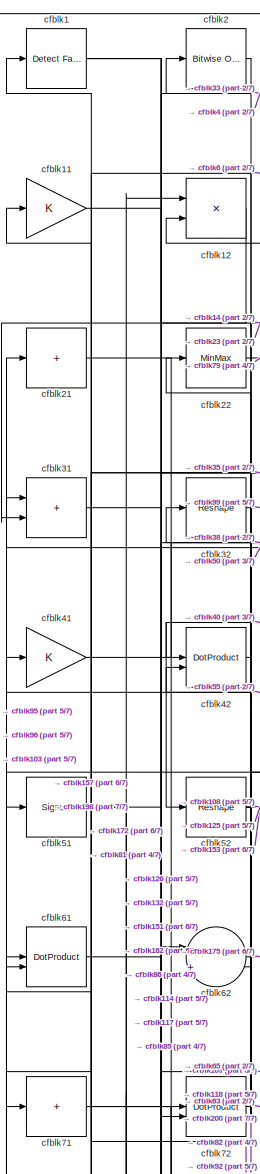
[diagram: root canvas - part 1/7, top left region]
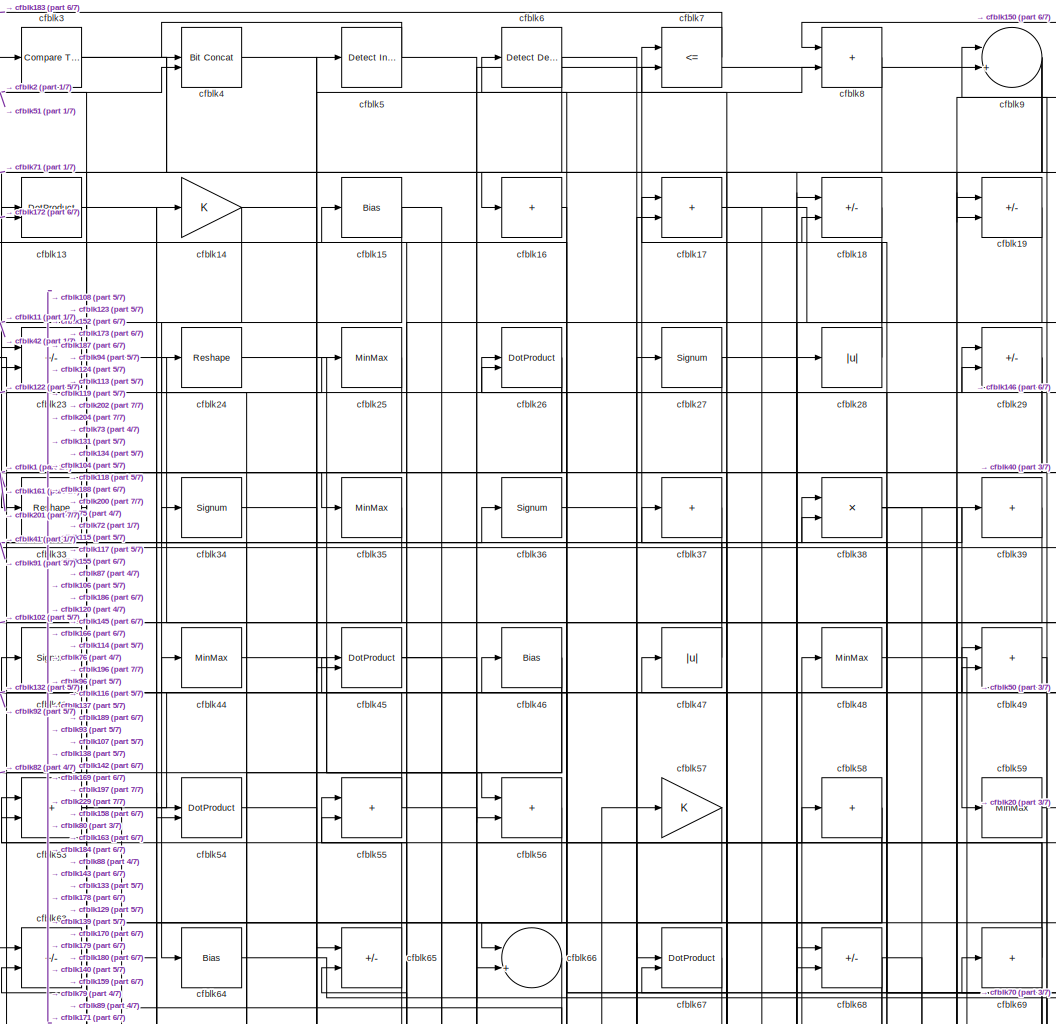
[diagram: root canvas - part 2/7, top center region]
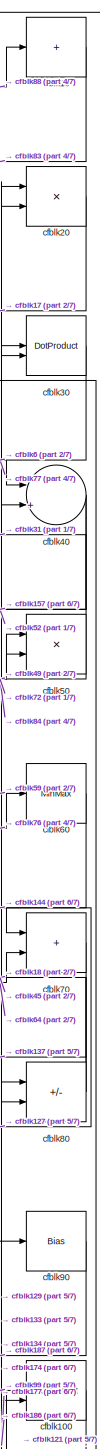
[diagram: root canvas - part 3/7, top right region]
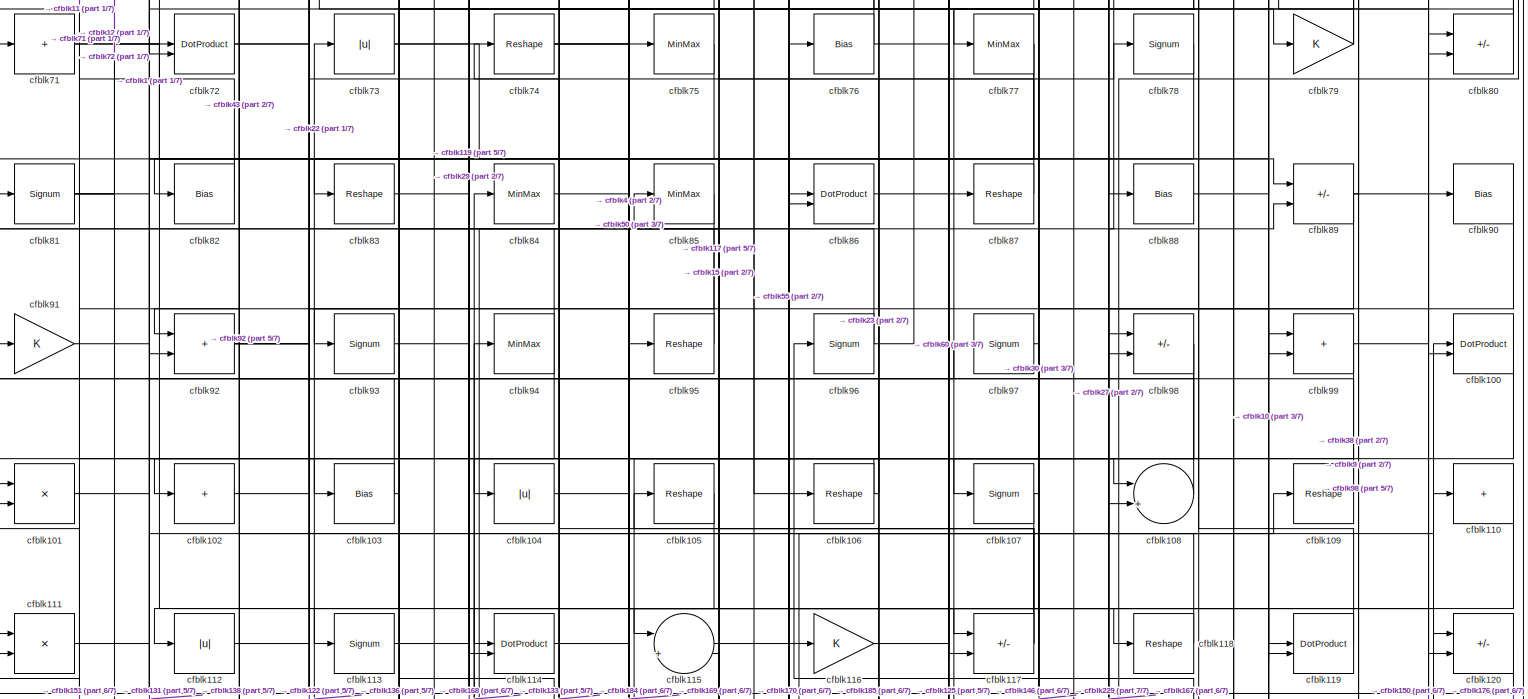
[diagram: root canvas - part 4/7, full width, middle band]
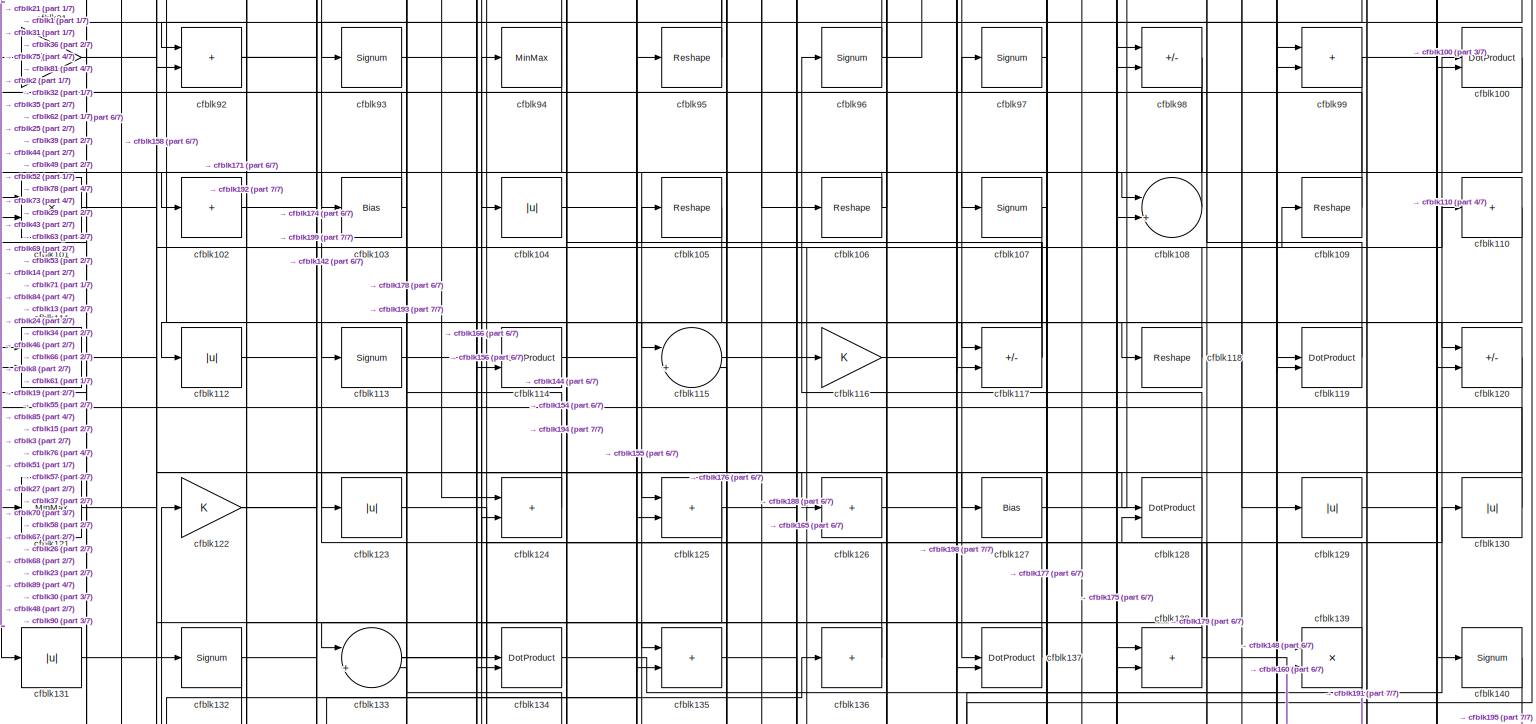
[diagram: root canvas - part 5/7, full width, middle band]
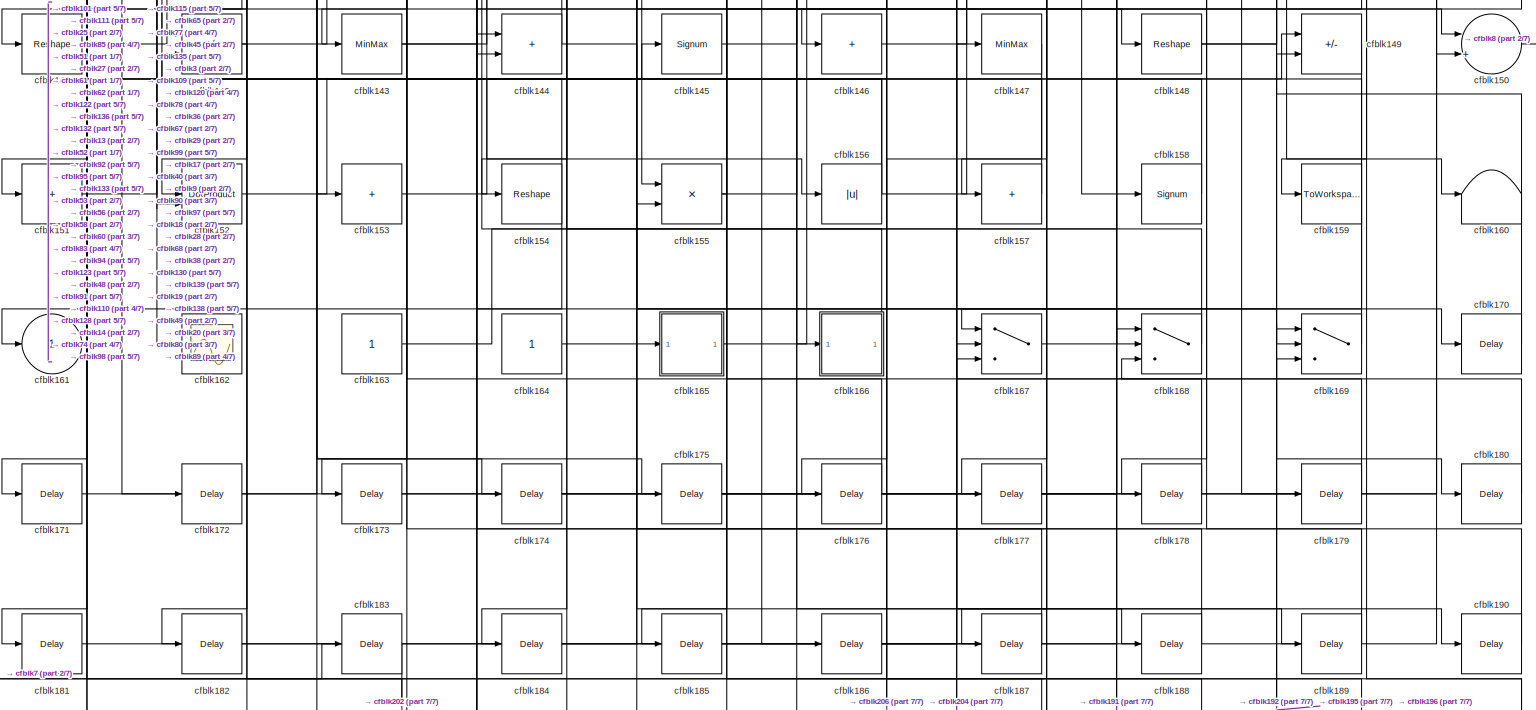
[diagram: root canvas - part 6/7, full width, bottom band]
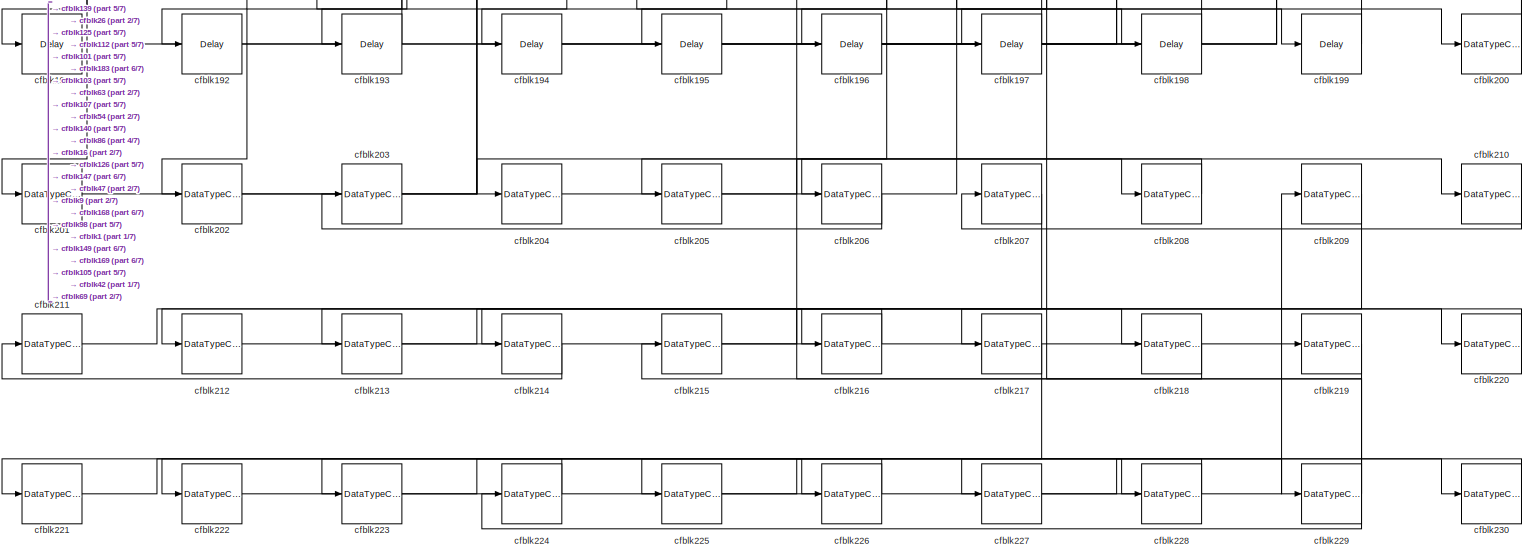
[diagram: root canvas - part 7/7, full width, bottom band]
MODEL slx_c27299323a4d
KIND model
CONFIG AbsTol = auto
CONFIG EnableMultiTasking = off
CONFIG FixedStep = auto
CONFIG MaxStep = auto
CONFIG MinStep = auto
CONFIG RelTol = 1e-3
CONFIG SampleTimeConstraint = Unconstrained
CONFIG SolverName = VariableStepAuto
CONFIG StartTime = 0.0
CONFIG StopTime = 10.0
BLOCK [Reference] cfblk1  REF=hdlsllib/Logic and Bit
Operations/Detect Fall
Negative
  SourceBlock = hdlsllib/Logic and Bit\nOperations/Detect Fall\nNegative
  SourceType = Detect Fall Negative
BLOCK [Sum] cfblk10
  IconShape = rectangular
  Inputs = +
BLOCK [DotProduct] cfblk100
  OutDataTypeStr = Inherit: Inherit via internal rule
BLOCK [Product] cfblk101
  Inputs = */
  RndMeth = Zero
  SaturateOnIntegerOverflow = on
BLOCK [Sum] cfblk102
  IconShape = rectangular
  Inputs = +
BLOCK [Bias] cfblk103
  Bias = 0.0
  SaturateOnIntegerOverflow = off
BLOCK [Abs] cfblk104
  SaturateOnIntegerOverflow = off
BLOCK [Reshape] cfblk105
BLOCK [Reshape] cfblk106
BLOCK [Signum] cfblk107
BLOCK [Sum] cfblk108
  Inputs = |++
BLOCK [Reshape] cfblk109
BLOCK [Gain] cfblk11
BLOCK [Sum] cfblk110
  IconShape = rectangular
  Inputs = +
BLOCK [Product] cfblk111
  Inputs = */
  RndMeth = Zero
  SaturateOnIntegerOverflow = on
BLOCK [Abs] cfblk112
  SaturateOnIntegerOverflow = off
BLOCK [Signum] cfblk113
BLOCK [DotProduct] cfblk114
  OutDataTypeStr = Inherit: Inherit via internal rule
BLOCK [Sum] cfblk115
  Inputs = |++
BLOCK [Gain] cfblk116
BLOCK [Sum] cfblk117
  IconShape = rectangular
  Inputs = +-
BLOCK [Reshape] cfblk118
BLOCK [DotProduct] cfblk119
  OutDataTypeStr = Inherit: Inherit via internal rule
BLOCK [Product] cfblk12
  Inputs = */
  RndMeth = Zero
  SaturateOnIntegerOverflow = on
BLOCK [Sum] cfblk120
  IconShape = rectangular
  Inputs = +-
BLOCK [MinMax] cfblk121
BLOCK [Gain] cfblk122
BLOCK [Abs] cfblk123
  SaturateOnIntegerOverflow = off
BLOCK [Sum] cfblk124
  IconShape = rectangular
BLOCK [Sum] cfblk125
  IconShape = rectangular
BLOCK [Sum] cfblk126
  IconShape = rectangular
  Inputs = +
BLOCK [Bias] cfblk127
  Bias = 0.0
  SaturateOnIntegerOverflow = off
BLOCK [DotProduct] cfblk128
  OutDataTypeStr = Inherit: Inherit via internal rule
BLOCK [Abs] cfblk129
  SaturateOnIntegerOverflow = off
BLOCK [DotProduct] cfblk13
  OutDataTypeStr = Inherit: Inherit via internal rule
BLOCK [Abs] cfblk130
  SaturateOnIntegerOverflow = off
BLOCK [Abs] cfblk131
  SaturateOnIntegerOverflow = off
BLOCK [Signum] cfblk132
BLOCK [Sum] cfblk133
  Inputs = |++
BLOCK [DotProduct] cfblk134
  OutDataTypeStr = Inherit: Inherit via internal rule
BLOCK [Sum] cfblk135
  IconShape = rectangular
BLOCK [Sum] cfblk136
  IconShape = rectangular
  Inputs = +
BLOCK [DotProduct] cfblk137
  OutDataTypeStr = Inherit: Inherit via internal rule
BLOCK [Sum] cfblk138
  IconShape = rectangular
BLOCK [Product] cfblk139
  Inputs = */
  RndMeth = Zero
  SaturateOnIntegerOverflow = on
BLOCK [Gain] cfblk14
BLOCK [Signum] cfblk140
BLOCK [Reshape] cfblk141
BLOCK [Sum] cfblk142
  IconShape = rectangular
  Inputs = +-
BLOCK [MinMax] cfblk143
BLOCK [Sum] cfblk144
  IconShape = rectangular
BLOCK [Signum] cfblk145
BLOCK [Sum] cfblk146
  IconShape = rectangular
  Inputs = +
BLOCK [MinMax] cfblk147
BLOCK [Reshape] cfblk148
BLOCK [Sum] cfblk149
  IconShape = rectangular
  Inputs = +-
BLOCK [Bias] cfblk15
  Bias = 0.0
  SaturateOnIntegerOverflow = off
BLOCK [Sum] cfblk150
  Inputs = |++
BLOCK [Sum] cfblk151
  IconShape = rectangular
  Inputs = +
BLOCK [DotProduct] cfblk152
  OutDataTypeStr = Inherit: Inherit via internal rule
BLOCK [Sum] cfblk153
  IconShape = rectangular
  Inputs = +
BLOCK [Reshape] cfblk154
BLOCK [Product] cfblk155
  Inputs = */
  RndMeth = Zero
  SaturateOnIntegerOverflow = on
BLOCK [Abs] cfblk156
  SaturateOnIntegerOverflow = off
BLOCK [Sum] cfblk157
  IconShape = rectangular
  Inputs = +
BLOCK [Signum] cfblk158
BLOCK [ToWorkspace] cfblk159
  MaxDataPoints = inf
  SampleTime = -1
  SaveFormat = Timeseries
  VariableName = simout
BLOCK [Sum] cfblk16
  IconShape = rectangular
  Inputs = +
BLOCK [Terminator] cfblk160
BLOCK [Outport] cfblk161
  VectorParamsAs1DForOutWhenUnconnected = off
BLOCK [Scope] cfblk162
  Floating = off
  NumInputPorts = 1
  ScopeSpecificationString = Simulink.scopes.TimeScopeBlockCfg('CurrentConfiguration', extmgr.ConfigurationSet(extmgr.Configuration('Core','General UI',true),extmgr.Configuration('Core','Source UI',true),extmgr.Configuration('Sources','WiredSimulink',true,'DataLoggingVariableName','ScopeData2','DataLoggingSaveFormat','Array','DataLoggingLimitDataPoints',true,'DataLoggingDecimation','1'),extmgr.Configuration('Visuals','Time Do...<+868ch>
BLOCK [Constant] cfblk163
  SampleTime = -1
BLOCK [Constant] cfblk164
  SampleTime = -1
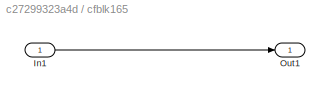
BLOCK [SubSystem] cfblk165
  LibrarySourceBlock = hdlsllib/Ports &\nSubsystems/Subsystem
BLOCK [Inport] cfblk165/In1
BLOCK [Outport] cfblk165/Out1
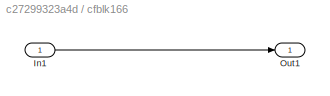
BLOCK [SubSystem] cfblk166
  LibrarySourceBlock = hdlsllib/Ports &\nSubsystems/Subsystem
BLOCK [Inport] cfblk166/In1
BLOCK [Outport] cfblk166/Out1
BLOCK [Switch] cfblk167
  InputSameDT = off
  SaturateOnIntegerOverflow = off
BLOCK [Switch] cfblk168
  InputSameDT = off
  SaturateOnIntegerOverflow = off
BLOCK [Switch] cfblk169
  InputSameDT = off
  SaturateOnIntegerOverflow = off
BLOCK [Sum] cfblk17
  IconShape = rectangular
BLOCK [Delay] cfblk170
  InputPortMap = u0
  SampleTime = 1
BLOCK [Delay] cfblk171
  InputPortMap = u0
  SampleTime = 1
BLOCK [Delay] cfblk172
  InputPortMap = u0
  SampleTime = 1
BLOCK [Delay] cfblk173
  InputPortMap = u0
  SampleTime = 1
BLOCK [Delay] cfblk174
  InputPortMap = u0
  SampleTime = 1
BLOCK [Delay] cfblk175
  InputPortMap = u0
  SampleTime = 1
BLOCK [Delay] cfblk176
  InputPortMap = u0
  SampleTime = 1
BLOCK [Delay] cfblk177
  InputPortMap = u0
  SampleTime = 1
BLOCK [Delay] cfblk178
  InputPortMap = u0
  SampleTime = 1
BLOCK [Delay] cfblk179
  InputPortMap = u0
  SampleTime = 1
BLOCK [Sum] cfblk18
  IconShape = rectangular
  Inputs = +-
BLOCK [Delay] cfblk180
  InputPortMap = u0
  SampleTime = 1
BLOCK [Delay] cfblk181
  InputPortMap = u0
  SampleTime = 1
BLOCK [Delay] cfblk182
  InputPortMap = u0
  SampleTime = 1
BLOCK [Delay] cfblk183
  InputPortMap = u0
  SampleTime = 1
BLOCK [Delay] cfblk184
  InputPortMap = u0
  SampleTime = 1
BLOCK [Delay] cfblk185
  InputPortMap = u0
  SampleTime = 1
BLOCK [Delay] cfblk186
  InputPortMap = u0
  SampleTime = 1
BLOCK [Delay] cfblk187
  InputPortMap = u0
  SampleTime = 1
BLOCK [Delay] cfblk188
  InputPortMap = u0
  SampleTime = 1
BLOCK [Delay] cfblk189
  InputPortMap = u0
  SampleTime = 1
BLOCK [Sum] cfblk19
  IconShape = rectangular
  Inputs = +-
BLOCK [Delay] cfblk190
  InputPortMap = u0
  SampleTime = 1
BLOCK [Delay] cfblk191
  InputPortMap = u0
  SampleTime = 1
BLOCK [Delay] cfblk192
  InputPortMap = u0
  SampleTime = 1
BLOCK [Delay] cfblk193
  InputPortMap = u0
  SampleTime = 1
BLOCK [Delay] cfblk194
  InputPortMap = u0
  SampleTime = 1
BLOCK [Delay] cfblk195
  InputPortMap = u0
  SampleTime = 1
BLOCK [Delay] cfblk196
  InputPortMap = u0
  SampleTime = 1
BLOCK [Delay] cfblk197
  InputPortMap = u0
  SampleTime = 1
BLOCK [Delay] cfblk198
  InputPortMap = u0
  SampleTime = 1
BLOCK [Delay] cfblk199
  InputPortMap = u0
  SampleTime = 1
BLOCK [Reference] cfblk2  REF=simulink/Logic and Bit
Operations/Bitwise
Operator
  LibrarySourceBlock = hdlsllib/Logic and Bit\nOperations/Bitwise\nOperator
  SourceBlock = simulink/Logic and Bit\nOperations/Bitwise\nOperator
  SourceType = Bitwise Operator
BLOCK [Product] cfblk20
  Inputs = */
  RndMeth = Zero
  SaturateOnIntegerOverflow = on
BLOCK [DataTypeConversion] cfblk200
  RndMeth = Floor
  SaturateOnIntegerOverflow = off
BLOCK [DataTypeConversion] cfblk201
  OutDataTypeStr = uint8
  RndMeth = Floor
  SaturateOnIntegerOverflow = off
BLOCK [DataTypeConversion] cfblk202
  OutDataTypeStr = uint8
  RndMeth = Floor
  SaturateOnIntegerOverflow = off
BLOCK [DataTypeConversion] cfblk203
  RndMeth = Floor
  SaturateOnIntegerOverflow = off
BLOCK [DataTypeConversion] cfblk204
  OutDataTypeStr = uint8
  RndMeth = Floor
  SaturateOnIntegerOverflow = off
BLOCK [DataTypeConversion] cfblk205
  RndMeth = Floor
  SaturateOnIntegerOverflow = off
BLOCK [DataTypeConversion] cfblk206
  OutDataTypeStr = uint8
  RndMeth = Floor
  SaturateOnIntegerOverflow = off
BLOCK [DataTypeConversion] cfblk207
  RndMeth = Floor
  SaturateOnIntegerOverflow = off
BLOCK [DataTypeConversion] cfblk208
  OutDataTypeStr = uint8
  RndMeth = Floor
  SaturateOnIntegerOverflow = off
BLOCK [DataTypeConversion] cfblk209
  RndMeth = Floor
  SaturateOnIntegerOverflow = off
BLOCK [Sum] cfblk21
  IconShape = rectangular
  Inputs = +
BLOCK [DataTypeConversion] cfblk210
  OutDataTypeStr = uint8
  RndMeth = Floor
  SaturateOnIntegerOverflow = off
BLOCK [DataTypeConversion] cfblk211
  RndMeth = Floor
  SaturateOnIntegerOverflow = off
BLOCK [DataTypeConversion] cfblk212
  OutDataTypeStr = uint8
  RndMeth = Floor
  SaturateOnIntegerOverflow = off
BLOCK [DataTypeConversion] cfblk213
  RndMeth = Floor
  SaturateOnIntegerOverflow = off
BLOCK [DataTypeConversion] cfblk214
  OutDataTypeStr = uint8
  RndMeth = Floor
  SaturateOnIntegerOverflow = off
BLOCK [DataTypeConversion] cfblk215
  RndMeth = Floor
  SaturateOnIntegerOverflow = off
BLOCK [DataTypeConversion] cfblk216
  OutDataTypeStr = uint8
  RndMeth = Floor
  SaturateOnIntegerOverflow = off
BLOCK [DataTypeConversion] cfblk217
  RndMeth = Floor
  SaturateOnIntegerOverflow = off
BLOCK [DataTypeConversion] cfblk218
  OutDataTypeStr = uint8
  RndMeth = Floor
  SaturateOnIntegerOverflow = off
BLOCK [DataTypeConversion] cfblk219
  RndMeth = Floor
  SaturateOnIntegerOverflow = off
BLOCK [MinMax] cfblk22
BLOCK [DataTypeConversion] cfblk220
  OutDataTypeStr = uint8
  RndMeth = Floor
  SaturateOnIntegerOverflow = off
BLOCK [DataTypeConversion] cfblk221
  RndMeth = Floor
  SaturateOnIntegerOverflow = off
BLOCK [DataTypeConversion] cfblk222
  OutDataTypeStr = uint8
  RndMeth = Floor
  SaturateOnIntegerOverflow = off
BLOCK [DataTypeConversion] cfblk223
  RndMeth = Floor
  SaturateOnIntegerOverflow = off
BLOCK [DataTypeConversion] cfblk224
  OutDataTypeStr = uint8
  RndMeth = Floor
  SaturateOnIntegerOverflow = off
BLOCK [DataTypeConversion] cfblk225
  RndMeth = Floor
  SaturateOnIntegerOverflow = off
BLOCK [DataTypeConversion] cfblk226
  OutDataTypeStr = uint8
  RndMeth = Floor
  SaturateOnIntegerOverflow = off
BLOCK [DataTypeConversion] cfblk227
  RndMeth = Floor
  SaturateOnIntegerOverflow = off
BLOCK [DataTypeConversion] cfblk228
  OutDataTypeStr = uint8
  RndMeth = Floor
  SaturateOnIntegerOverflow = off
BLOCK [DataTypeConversion] cfblk229
  RndMeth = Floor
  SaturateOnIntegerOverflow = off
BLOCK [Sum] cfblk23
  IconShape = rectangular
  Inputs = +-
BLOCK [DataTypeConversion] cfblk230
  OutDataTypeStr = uint8
  RndMeth = Floor
  SaturateOnIntegerOverflow = off
BLOCK [Reshape] cfblk24
BLOCK [MinMax] cfblk25
BLOCK [DotProduct] cfblk26
  OutDataTypeStr = Inherit: Inherit via internal rule
BLOCK [Signum] cfblk27
BLOCK [Abs] cfblk28
  SaturateOnIntegerOverflow = off
BLOCK [Sum] cfblk29
  IconShape = rectangular
  Inputs = +-
BLOCK [Reference] cfblk3  REF=hdlsllib/Logic and Bit
Operations/Compare
To Zero
  SourceBlock = hdlsllib/Logic and Bit\nOperations/Compare\nTo Zero
  SourceType = Compare To Zero
BLOCK [DotProduct] cfblk30
  OutDataTypeStr = Inherit: Inherit via internal rule
BLOCK [Sum] cfblk31
  IconShape = rectangular
BLOCK [Reshape] cfblk32
BLOCK [Reshape] cfblk33
BLOCK [Signum] cfblk34
BLOCK [MinMax] cfblk35
BLOCK [Signum] cfblk36
BLOCK [Sum] cfblk37
  IconShape = rectangular
  Inputs = +
BLOCK [Product] cfblk38
  Inputs = */
  RndMeth = Zero
  SaturateOnIntegerOverflow = on
BLOCK [Sum] cfblk39
  IconShape = rectangular
  Inputs = +
BLOCK [Reference] cfblk4  REF=hdlsllib/Logic and Bit
Operations/Bit Concat
  SourceBlock = hdlsllib/Logic and Bit\nOperations/Bit Concat
  SourceType = Bit Concat
BLOCK [Sum] cfblk40
  Inputs = |++
BLOCK [Gain] cfblk41
BLOCK [DotProduct] cfblk42
  OutDataTypeStr = Inherit: Inherit via internal rule
BLOCK [Signum] cfblk43
BLOCK [MinMax] cfblk44
BLOCK [DotProduct] cfblk45
  OutDataTypeStr = Inherit: Inherit via internal rule
BLOCK [Bias] cfblk46
  Bias = 0.0
  SaturateOnIntegerOverflow = off
BLOCK [Abs] cfblk47
  SaturateOnIntegerOverflow = off
BLOCK [MinMax] cfblk48
BLOCK [Sum] cfblk49
  IconShape = rectangular
BLOCK [Reference] cfblk5  REF=simulink/Logic and Bit
Operations/Detect
Increase
  LibrarySourceBlock = hdlsllib/Logic and Bit\nOperations/Detect\nIncrease
  SourceBlock = simulink/Logic and Bit\nOperations/Detect\nIncrease
  SourceType = Detect Increase
BLOCK [Product] cfblk50
  Inputs = */
  RndMeth = Zero
  SaturateOnIntegerOverflow = on
BLOCK [Signum] cfblk51
BLOCK [Reshape] cfblk52
BLOCK [Sum] cfblk53
  IconShape = rectangular
BLOCK [DotProduct] cfblk54
  OutDataTypeStr = Inherit: Inherit via internal rule
BLOCK [Sum] cfblk55
  IconShape = rectangular
BLOCK [Sum] cfblk56
  IconShape = rectangular
BLOCK [Gain] cfblk57
BLOCK [Sum] cfblk58
  IconShape = rectangular
  Inputs = +
BLOCK [MinMax] cfblk59
BLOCK [Reference] cfblk6  REF=simulink/Logic and Bit
Operations/Detect
Decrease
  LibrarySourceBlock = hdlsllib/Logic and Bit\nOperations/Detect\nDecrease
  SourceBlock = simulink/Logic and Bit\nOperations/Detect\nDecrease
  SourceType = Detect Decrease
BLOCK [MinMax] cfblk60
BLOCK [DotProduct] cfblk61
  OutDataTypeStr = Inherit: Inherit via internal rule
BLOCK [Sum] cfblk62
  Inputs = |++
BLOCK [Sum] cfblk63
  IconShape = rectangular
  Inputs = +-
BLOCK [Bias] cfblk64
  Bias = 0.0
  SaturateOnIntegerOverflow = off
BLOCK [Sum] cfblk65
  IconShape = rectangular
  Inputs = +-
BLOCK [Sum] cfblk66
  Inputs = |++
BLOCK [DotProduct] cfblk67
  OutDataTypeStr = Inherit: Inherit via internal rule
BLOCK [Sum] cfblk68
  IconShape = rectangular
  Inputs = +-
BLOCK [Sum] cfblk69
  IconShape = rectangular
  Inputs = +
BLOCK [RelationalOperator] cfblk7
  InputSameDT = off
  Operator = <=
  OutDataTypeStr = boolean
BLOCK [Sum] cfblk70
  IconShape = rectangular
BLOCK [Sum] cfblk71
  IconShape = rectangular
  Inputs = +
BLOCK [DotProduct] cfblk72
  OutDataTypeStr = Inherit: Inherit via internal rule
BLOCK [Abs] cfblk73
  SaturateOnIntegerOverflow = off
BLOCK [Reshape] cfblk74
BLOCK [MinMax] cfblk75
BLOCK [Bias] cfblk76
  Bias = 0.0
  SaturateOnIntegerOverflow = off
BLOCK [MinMax] cfblk77
BLOCK [Signum] cfblk78
BLOCK [Gain] cfblk79
BLOCK [Sum] cfblk8
  IconShape = rectangular
BLOCK [Sum] cfblk80
  IconShape = rectangular
  Inputs = +-
BLOCK [Signum] cfblk81
BLOCK [Bias] cfblk82
  Bias = 0.0
  SaturateOnIntegerOverflow = off
BLOCK [Reshape] cfblk83
BLOCK [MinMax] cfblk84
BLOCK [MinMax] cfblk85
BLOCK [DotProduct] cfblk86
  OutDataTypeStr = Inherit: Inherit via internal rule
BLOCK [Reshape] cfblk87
BLOCK [Bias] cfblk88
  Bias = 0.0
  SaturateOnIntegerOverflow = off
BLOCK [Sum] cfblk89
  IconShape = rectangular
  Inputs = +-
BLOCK [Sum] cfblk9
  Inputs = |++
BLOCK [Bias] cfblk90
  Bias = 0.0
  SaturateOnIntegerOverflow = off
BLOCK [Gain] cfblk91
BLOCK [Sum] cfblk92
  IconShape = rectangular
BLOCK [Signum] cfblk93
BLOCK [MinMax] cfblk94
BLOCK [Reshape] cfblk95
BLOCK [Signum] cfblk96
BLOCK [Signum] cfblk97
BLOCK [Sum] cfblk98
  IconShape = rectangular
  Inputs = +-
BLOCK [Sum] cfblk99
  IconShape = rectangular
LINE cfblk100:1 -> cfblk121:1
LINE cfblk101:1 -> cfblk103:1
LINE cfblk102:1 -> cfblk3:1
NET cfblk103:1 -> cfblk193:1, cfblk21:1
LINE cfblk104:1 -> cfblk8:2
LINE cfblk105:1 -> cfblk112:1
NET cfblk106:1 -> cfblk104:1, cfblk46:1
NET cfblk107:1 -> cfblk194:1, cfblk37:1
LINE cfblk108:1 -> cfblk43:1
LINE cfblk109:1 -> cfblk32:1
LINE cfblk10:1 -> cfblk83:1
LINE cfblk110:1 -> cfblk184:1
LINE cfblk111:1 -> cfblk125:1
LINE cfblk112:1 -> cfblk199:1
LINE cfblk113:1 -> cfblk14:1
LINE cfblk114:1 -> cfblk127:1
LINE cfblk115:1 -> cfblk116:1
LINE cfblk116:1 -> cfblk27:1
NET cfblk117:1 -> cfblk34:1, cfblk55:2, cfblk85:1
LINE cfblk118:1 -> cfblk62:2
LINE cfblk119:1 -> cfblk26:1
LINE cfblk11:1 -> cfblk23:1
LINE cfblk120:1 -> cfblk176:1
LINE cfblk121:1 -> cfblk97:1
NET cfblk122:1 -> cfblk25:1, cfblk78:1
LINE cfblk123:1 -> cfblk156:1
LINE cfblk124:1 -> cfblk63:2
NET cfblk125:1 -> cfblk192:1, cfblk76:1
LINE cfblk126:1 -> cfblk198:1
LINE cfblk127:1 -> cfblk70:1
NET cfblk128:1 -> cfblk154:1, cfblk96:1
LINE cfblk129:1 -> cfblk30:1
LINE cfblk12:1 -> cfblk31:2
LINE cfblk130:1 -> cfblk111:1
LINE cfblk131:1 -> cfblk110:1
NET cfblk132:1 -> cfblk171:1, cfblk49:1
NET cfblk133:1 -> cfblk30:2, cfblk84:1
LINE cfblk134:1 -> cfblk100:1
LINE cfblk135:1 -> cfblk188:1
LINE cfblk136:1 -> cfblk73:1
LINE cfblk137:1 -> cfblk24:1
NET cfblk138:1 -> cfblk160:1, cfblk67:2
NET cfblk139:1 -> cfblk124:2, cfblk191:1
LINE cfblk13:1 -> cfblk119:2
LINE cfblk140:1 -> cfblk195:1
LINE cfblk141:1 -> cfblk136:1
NET cfblk142:1 -> cfblk182:1, cfblk95:1
NET cfblk143:1 -> cfblk148:1, cfblk48:1
NET cfblk144:1 -> cfblk190:1, cfblk91:1
LINE cfblk145:1 -> cfblk58:1
LINE cfblk146:1 -> cfblk29:1
LINE cfblk147:1 -> cfblk206:1
NET cfblk148:1 -> cfblk130:1, cfblk139:2
LINE cfblk149:1 -> cfblk167:1
NET cfblk14:1 -> cfblk150:1, cfblk42:1
LINE cfblk150:1 -> cfblk8:1
LINE cfblk151:1 -> cfblk62:1
LINE cfblk152:1 -> cfblk145:1
LINE cfblk153:1 -> cfblk149:1
NET cfblk154:1 -> cfblk142:2, cfblk181:1
NET cfblk155:1 -> cfblk65:2, cfblk9:2
NET cfblk156:1 -> cfblk101:2, cfblk111:2, cfblk99:1
LINE cfblk157:1 -> cfblk61:2
LINE cfblk158:1 -> cfblk122:1
NET cfblk15:1 -> cfblk106:1, cfblk64:1
LINE cfblk163:1 -> cfblk28:1
LINE cfblk164:1 -> cfblk165:1
LINE cfblk165/In1:1 -> cfblk165/Out1:1
LINE cfblk165:1 -> cfblk109:1
LINE cfblk166/In1:1 -> cfblk166/Out1:1
LINE cfblk166:1 -> cfblk94:1
LINE cfblk167:1 -> cfblk89:2
LINE cfblk168:1 -> cfblk74:1
LINE cfblk169:1 -> cfblk17:1
LINE cfblk16:1 -> cfblk196:1
LINE cfblk170:1 -> cfblk19:1
LINE cfblk171:1 -> cfblk17:2
LINE cfblk172:1 -> cfblk13:2
LINE cfblk173:1 -> cfblk18:1
LINE cfblk174:1 -> cfblk40:2
LINE cfblk175:1 -> cfblk138:1
LINE cfblk176:1 -> cfblk115:2
LINE cfblk177:1 -> cfblk20:1
LINE cfblk178:1 -> cfblk133:2
LINE cfblk179:1 -> cfblk128:2
NET cfblk17:1 -> cfblk158:1, cfblk80:1
LINE cfblk180:1 -> cfblk67:1
LINE cfblk181:1 -> cfblk155:2
LINE cfblk182:1 -> cfblk167:2
LINE cfblk183:1 -> cfblk202:1
LINE cfblk184:1 -> cfblk68:1
LINE cfblk185:1 -> cfblk167:3
LINE cfblk186:1 -> cfblk80:2
LINE cfblk187:1 -> cfblk53:2
LINE cfblk188:1 -> cfblk65:1
LINE cfblk189:1 -> cfblk144:1
LINE cfblk18:1 -> cfblk68:2
LINE cfblk190:1 -> cfblk168:3
LINE cfblk191:1 -> cfblk168:1
LINE cfblk192:1 -> cfblk169:3
LINE cfblk193:1 -> cfblk101:1
LINE cfblk194:1 -> cfblk98:1
LINE cfblk195:1 -> cfblk169:1
LINE cfblk196:1 -> cfblk149:2
LINE cfblk197:1 -> cfblk26:2
LINE cfblk198:1 -> cfblk1:1
LINE cfblk199:1 -> cfblk105:1
LINE cfblk19:1 -> cfblk115:1
NET cfblk1:1 -> cfblk126:1, cfblk35:1, cfblk86:2
NET cfblk200:1 -> cfblk42:2, cfblk69:1
LINE cfblk201:1 -> cfblk54:1
LINE cfblk202:1 -> cfblk54:2
LINE cfblk203:1 -> cfblk208:1
LINE cfblk204:1 -> cfblk147:1
LINE cfblk205:1 -> cfblk210:1
LINE cfblk206:1 -> cfblk203:1
LINE cfblk207:1 -> cfblk212:1
LINE cfblk208:1 -> cfblk205:1
LINE cfblk209:1 -> cfblk214:1
LINE cfblk20:1 -> cfblk100:2
LINE cfblk210:1 -> cfblk207:1
LINE cfblk211:1 -> cfblk216:1
LINE cfblk212:1 -> cfblk209:1
LINE cfblk213:1 -> cfblk218:1
LINE cfblk214:1 -> cfblk211:1
LINE cfblk215:1 -> cfblk220:1
LINE cfblk216:1 -> cfblk213:1
LINE cfblk217:1 -> cfblk222:1
LINE cfblk218:1 -> cfblk215:1
LINE cfblk219:1 -> cfblk224:1
LINE cfblk21:1 -> cfblk117:1
LINE cfblk220:1 -> cfblk217:1
LINE cfblk221:1 -> cfblk226:1
LINE cfblk222:1 -> cfblk219:1
LINE cfblk223:1 -> cfblk228:1
LINE cfblk224:1 -> cfblk221:1
LINE cfblk225:1 -> cfblk230:1
LINE cfblk226:1 -> cfblk223:1
LINE cfblk227:1 -> cfblk229:1
LINE cfblk228:1 -> cfblk225:1
NET cfblk229:1 -> cfblk47:1, cfblk86:1
LINE cfblk22:1 -> cfblk79:1
LINE cfblk230:1 -> cfblk227:1
LINE cfblk23:1 -> cfblk139:1
LINE cfblk24:1 -> cfblk56:1
LINE cfblk25:1 -> cfblk161:1
NET cfblk26:1 -> cfblk201:1, cfblk45:2
NET cfblk27:1 -> cfblk152:2, cfblk88:1
LINE cfblk28:1 -> cfblk7:2
NET cfblk29:1 -> cfblk123:1, cfblk152:1
LINE cfblk2:1 -> cfblk92:1
LINE cfblk30:1 -> cfblk77:1
LINE cfblk31:1 -> cfblk132:1
LINE cfblk32:1 -> cfblk99:2
LINE cfblk33:1 -> cfblk2:1
LINE cfblk34:1 -> cfblk118:1
LINE cfblk35:1 -> cfblk102:1
LINE cfblk36:1 -> cfblk189:1
LINE cfblk37:1 -> cfblk137:2
NET cfblk38:1 -> cfblk178:1, cfblk179:1, cfblk180:1, cfblk59:1
LINE cfblk39:1 -> cfblk66:1
NET cfblk3:1 -> cfblk108:2, cfblk166:1
NET cfblk40:1 -> cfblk157:1, cfblk52:1
LINE cfblk41:1 -> cfblk38:1
LINE cfblk42:1 -> cfblk22:1
LINE cfblk43:1 -> cfblk82:1
LINE cfblk44:1 -> cfblk56:2
NET cfblk45:1 -> cfblk186:1, cfblk66:2
NET cfblk46:1 -> cfblk131:1, cfblk134:1
LINE cfblk47:1 -> cfblk7:1
LINE cfblk48:1 -> cfblk140:1
LINE cfblk49:1 -> cfblk159:1
LINE cfblk4:1 -> cfblk75:1
NET cfblk50:1 -> cfblk31:1, cfblk49:2
NET cfblk51:1 -> cfblk172:1, cfblk4:2
NET cfblk52:1 -> cfblk108:1, cfblk125:2, cfblk153:1
NET cfblk53:1 -> cfblk124:1, cfblk5:1
LINE cfblk54:1 -> cfblk200:1
NET cfblk55:1 -> cfblk120:1, cfblk41:1
LINE cfblk56:1 -> cfblk173:1
LINE cfblk57:1 -> cfblk117:2
NET cfblk58:1 -> cfblk107:1, cfblk143:1
LINE cfblk59:1 -> cfblk20:2
NET cfblk5:1 -> cfblk19:2, cfblk4:1
LINE cfblk60:1 -> cfblk144:2
LINE cfblk61:1 -> cfblk162:1
LINE cfblk62:1 -> cfblk175:1
LINE cfblk63:1 -> cfblk204:1
LINE cfblk64:1 -> cfblk70:2
NET cfblk65:1 -> cfblk53:1, cfblk72:2
LINE cfblk66:1 -> cfblk114:1
LINE cfblk67:1 -> cfblk93:1
NET cfblk68:1 -> cfblk129:1, cfblk133:1, cfblk134:2
NET cfblk69:1 -> cfblk113:1, cfblk55:1, cfblk6:1
NET cfblk6:1 -> cfblk40:1, cfblk71:1
LINE cfblk70:1 -> cfblk137:1
NET cfblk71:1 -> cfblk114:2, cfblk89:1
NET cfblk72:1 -> cfblk50:2, cfblk63:1
NET cfblk73:1 -> cfblk119:1, cfblk29:2
NET cfblk74:1 -> cfblk120:2, cfblk169:2, cfblk170:1
LINE cfblk75:1 -> cfblk92:2
NET cfblk76:1 -> cfblk23:2, cfblk60:1
NET cfblk77:1 -> cfblk185:1, cfblk81:1
LINE cfblk78:1 -> cfblk146:1
NET cfblk79:1 -> cfblk12:2, cfblk38:2
LINE cfblk7:1 -> cfblk183:1
NET cfblk80:1 -> cfblk18:2, cfblk45:1
NET cfblk81:1 -> cfblk12:1, cfblk138:2, cfblk72:1
LINE cfblk82:1 -> cfblk11:1
LINE cfblk83:1 -> cfblk168:2
LINE cfblk84:1 -> cfblk50:1
LINE cfblk85:1 -> cfblk151:1
LINE cfblk86:1 -> cfblk87:1
LINE cfblk87:1 -> cfblk15:1
LINE cfblk88:1 -> cfblk10:1
NET cfblk89:1 -> cfblk150:2, cfblk98:2, cfblk9:1
LINE cfblk8:1 -> cfblk33:1
LINE cfblk90:1 -> cfblk187:1
LINE cfblk91:1 -> cfblk36:1
NET cfblk92:1 -> cfblk174:1, cfblk39:1, cfblk44:1
LINE cfblk93:1 -> cfblk128:1
NET cfblk94:1 -> cfblk13:1, cfblk141:1
LINE cfblk95:1 -> cfblk61:1
NET cfblk96:1 -> cfblk51:1, cfblk57:1
LINE cfblk97:1 -> cfblk177:1
NET cfblk98:1 -> cfblk135:2, cfblk155:1
NET cfblk99:1 -> cfblk135:1, cfblk90:1
NET cfblk9:1 -> cfblk142:1, cfblk16:1, cfblk197:1
note: NET lines group one-source signal fan-out (src -> all destinations, sorted); 1:1 wires keep LINE
